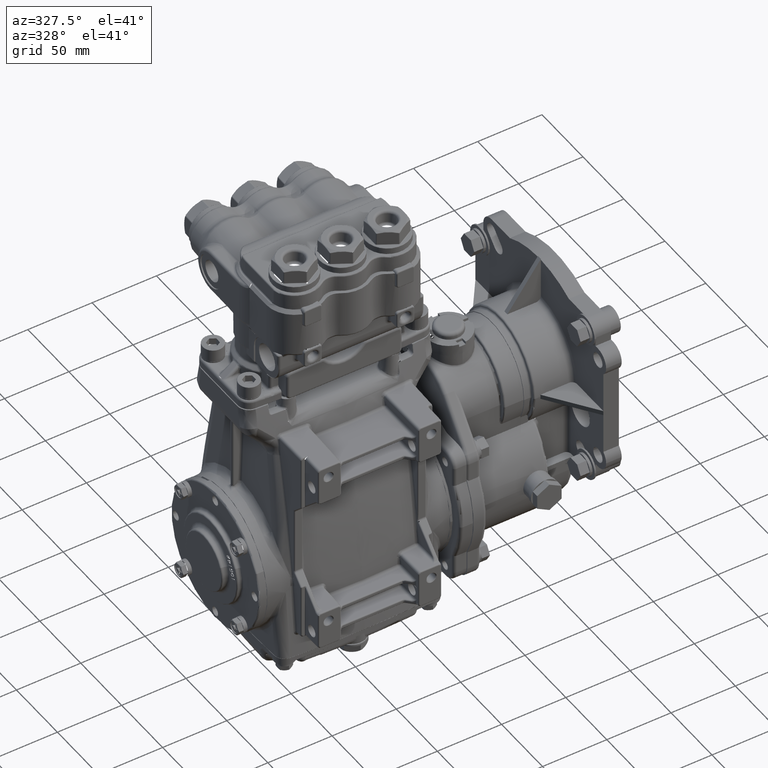
[diagram: clean part render]
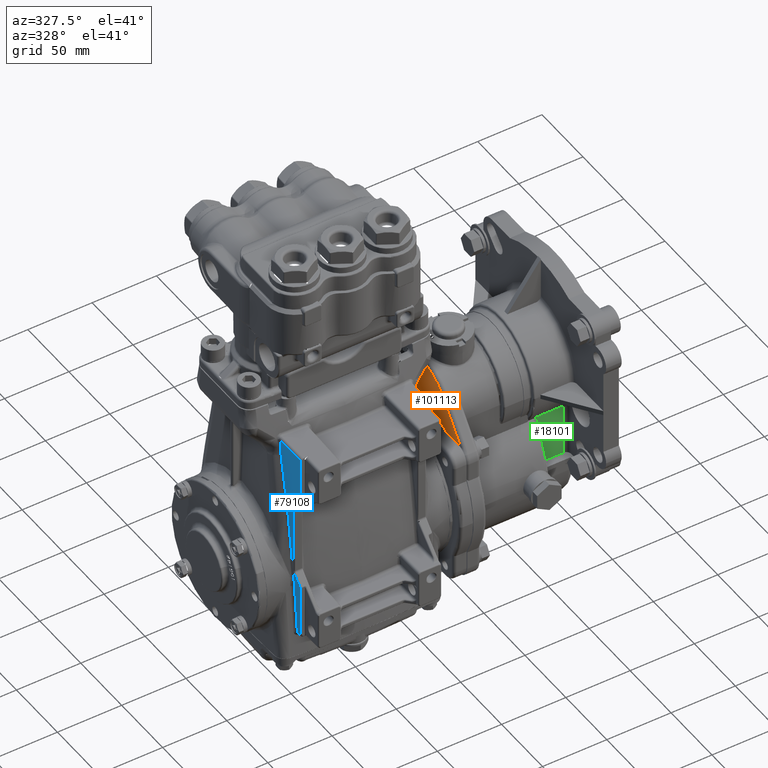
[diagram: same view with three faces highlighted in distinct colors, each labeled with its STEP entity id]
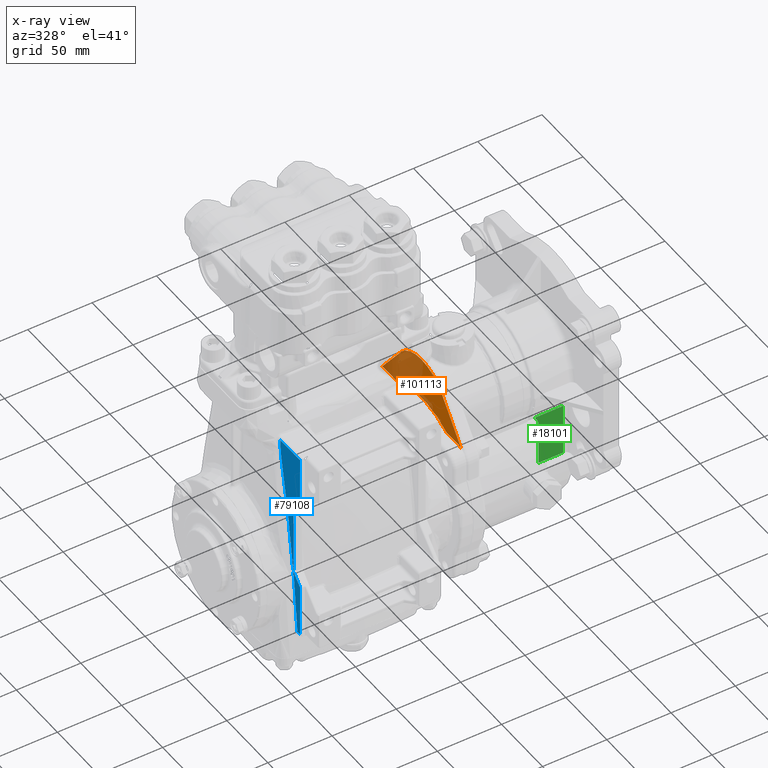
[diagram: x-ray of the same camera — body ghosted, the three highlighted faces saturated]
A machine part, auxiliary view with three faces highlighted in distinct colors.
The next image is the same camera in x-ray (body ghosted, the three faces saturated) — at least one of them is partly hidden behind the body in this view.
Their STEP definitions:

[orange] entity #101113 — the highlighted planar face has unit normal (-1, -0, 0).
#4445 = DIRECTION ( 'NONE',  ( -1.000000000000000000, -7.102626545835169598E-19, 4.324783731851683387E-18 ) ) ;
#7020 = CARTESIAN_POINT ( 'NONE',  ( 3.275275590551181892, -1.205780348985674877, 2.169999999999995044 ) ) ;
#7358 = DIRECTION ( 'NONE',  ( -1.000000000000000000, -7.102626545835169598E-19, 4.324783731851683387E-18 ) ) ;
#8636 = ORIENTED_EDGE ( 'NONE', *, *, #88073, .T. ) ;
#9980 = VECTOR ( 'NONE', #72753, 39.37007874015748143 ) ;
#12634 = DIRECTION ( 'NONE',  ( -7.102626545835171524E-19, 1.000000000000000000, 2.775557561562890735E-17 ) ) ;
#15042 = VERTEX_POINT ( 'NONE', #29482 ) ;
#15663 = AXIS2_PLACEMENT_3D ( 'NONE', #59815, #44157, #54640 ) ;
#16549 = VECTOR ( 'NONE', #33072, 39.37007874015748143 ) ;
#17288 = CARTESIAN_POINT ( 'NONE',  ( 3.275275590551181892, 1.769999999999995133, 2.169999999999996376 ) ) ;
#19481 = AXIS2_PLACEMENT_3D ( 'NONE', #110079, #7358, #93325 ) ;
#22994 = CARTESIAN_POINT ( 'NONE',  ( 3.275275590551181892, -5.562166079933258553E-15, -4.917326388595674188E-15 ) ) ;
#23049 = ORIENTED_EDGE ( 'NONE', *, *, #32385, .F. ) ;
#24298 = ORIENTED_EDGE ( 'NONE', *, *, #39942, .F. ) ;
#25988 = VERTEX_POINT ( 'NONE', #7020 ) ;
#26001 = EDGE_CURVE ( 'NONE', #87105, #91603, #72862, .T. ) ;
#26794 = EDGE_CURVE ( 'NONE', #56380, #68424, #106567, .T. ) ;
#29482 = CARTESIAN_POINT ( 'NONE',  ( 3.275275590551181892, -1.001439707653811961, 3.292036818552271260 ) ) ;
#31280 = AXIS2_PLACEMENT_3D ( 'NONE', #67691, #97387, #12634 ) ;
#32385 = EDGE_CURVE ( 'NONE', #68424, #25988, #75233, .T. ) ;
#33072 = DIRECTION ( 'NONE',  ( -7.102626545835213894E-19, 1.000000000000000000, -9.406077165005021209E-16 ) ) ;
#35858 = EDGE_LOOP ( 'NONE', ( #121792, #95972, #8636, #93737, #73920, #24298, #47731, #23049 ) ) ;
#38998 = CARTESIAN_POINT ( 'NONE',  ( 3.275275590551181892, 1.205780348985664441, 2.169999999999995044 ) ) ;
#39850 = FACE_OUTER_BOUND ( 'NONE', #35858, .T. ) ;
#39942 = EDGE_CURVE ( 'NONE', #59436, #87105, #104516, .T. ) ;
#44157 = DIRECTION ( 'NONE',  ( -1.000000000000000000, -7.102626545835169598E-19, 4.324783731851683387E-18 ) ) ;
#44734 = CARTESIAN_POINT ( 'NONE',  ( 3.275275590551181892, 1.769999999999995133, 1.769999999999996243 ) ) ;
#47731 = ORIENTED_EDGE ( 'NONE', *, *, #80869, .F. ) ;
#49815 = CARTESIAN_POINT ( 'NONE',  ( 3.275275590551181892, -1.205780348985674877, 2.169999999999995044 ) ) ;
#54640 = DIRECTION ( 'NONE',  ( 0.000000000000000000, -1.000000000000000000, 0.000000000000000000 ) ) ;
#56380 = VERTEX_POINT ( 'NONE', #121809 ) ;
#59436 = VERTEX_POINT ( 'NONE', #38998 ) ;
#59598 = PLANE ( 'NONE',  #31280 ) ;
#59815 = CARTESIAN_POINT ( 'NONE',  ( 3.275275590551181892, -1.770000000000006457, 1.769999999999996243 ) ) ;
#62192 = CARTESIAN_POINT ( 'NONE',  ( 3.275275590551181892, 1.891196312143270220, 2.151197394958133113 ) ) ;
#67691 = CARTESIAN_POINT ( 'NONE',  ( 3.275275590551181892, -5.631860330304102635E-15, 2.510999999999995680 ) ) ;
#68424 = VERTEX_POINT ( 'NONE', #111199 ) ;
#71560 = VECTOR ( 'NONE', #112724, 39.37007874015748143 ) ;
#72753 = DIRECTION ( 'NONE',  ( 2.973440056707934881E-18, 0.6149896209073036912, 0.7885352028770122867 ) ) ;
#72812 = CIRCLE ( 'NONE', #19481, 1.270000000000000462 ) ;
#72862 = CIRCLE ( 'NONE', #104527, 0.4000000000000000777 ) ;
#72889 = CARTESIAN_POINT ( 'NONE',  ( 3.275275590551181892, 1.769999999999995133, 2.169999999999996376 ) ) ;
#73920 = ORIENTED_EDGE ( 'NONE', *, *, #26001, .F. ) ;
#74962 = CARTESIAN_POINT ( 'NONE',  ( 3.275275590551181892, 1.001439707653800193, 3.292036818552271704 ) ) ;
#75233 = LINE ( 'NONE', #49815, #16549 ) ;
#76411 = EDGE_CURVE ( 'NONE', #86216, #91603, #121968, .T. ) ;
#80869 = EDGE_CURVE ( 'NONE', #25988, #59436, #113585, .T. ) ;
#83243 = LINE ( 'NONE', #111740, #9980 ) ;
#86216 = VERTEX_POINT ( 'NONE', #109738 ) ;
#87105 = VERTEX_POINT ( 'NONE', #72889 ) ;
#88073 = EDGE_CURVE ( 'NONE', #15042, #86216, #72812, .T. ) ;
#89334 = DIRECTION ( 'NONE',  ( 0.000000000000000000, -1.000000000000000000, 0.000000000000000000 ) ) ;
#90295 = EDGE_CURVE ( 'NONE', #56380, #15042, #83243, .T. ) ;
#91603 = VERTEX_POINT ( 'NONE', #62192 ) ;
#93325 = DIRECTION ( 'NONE',  ( 0.000000000000000000, 1.000000000000000000, 0.000000000000000000 ) ) ;
#93737 = ORIENTED_EDGE ( 'NONE', *, *, #76411, .T. ) ;
#95972 = ORIENTED_EDGE ( 'NONE', *, *, #90295, .T. ) ;
#97387 = DIRECTION ( 'NONE',  ( -1.000000000000000000, -7.102626545835172487E-19, 4.324783731851683387E-18 ) ) ;
#101113 = ADVANCED_FACE ( 'NONE', ( #39850 ), #59598, .T. ) ;
#104516 = LINE ( 'NONE', #17288, #114183 ) ;
#104527 = AXIS2_PLACEMENT_3D ( 'NONE', #44734, #120211, #89334 ) ;
#106567 = CIRCLE ( 'NONE', #15663, 0.3999999999999998557 ) ;
#109738 = CARTESIAN_POINT ( 'NONE',  ( 3.275275590551181892, 1.001439707653800859, 3.292036818552271260 ) ) ;
#110079 = CARTESIAN_POINT ( 'NONE',  ( 3.275275590551181892, -5.631860330304102635E-15, 2.510999999999995680 ) ) ;
#111199 = CARTESIAN_POINT ( 'NONE',  ( 3.275275590551181892, -1.770000000000006457, 2.169999999999995488 ) ) ;
#111740 = CARTESIAN_POINT ( 'NONE',  ( 3.275275590551181892, -1.001439707653811295, 3.292036818552271704 ) ) ;
#112724 = DIRECTION ( 'NONE',  ( -3.847048378081799621E-18, 0.6149896209073036912, -0.7885352028770122867 ) ) ;
#113174 = DIRECTION ( 'NONE',  ( -7.102626545835088709E-19, 1.000000000000000000, 1.964482159847890588E-15 ) ) ;
#113585 = CIRCLE ( 'NONE', #115584, 2.482500000000000817 ) ;
#114183 = VECTOR ( 'NONE', #113174, 39.37007874015748143 ) ;
#115584 = AXIS2_PLACEMENT_3D ( 'NONE', #22994, #4445, #117634 ) ;
#117634 = DIRECTION ( 'NONE',  ( 0.000000000000000000, -1.000000000000000000, -2.775557561562887345E-17 ) ) ;
#120211 = DIRECTION ( 'NONE',  ( -1.000000000000000000, -7.102626545835169598E-19, 4.324783731851683387E-18 ) ) ;
#121792 = ORIENTED_EDGE ( 'NONE', *, *, #26794, .F. ) ;
#121809 = CARTESIAN_POINT ( 'NONE',  ( 3.275275590551181892, -1.891196312143281988, 2.151197394958133113 ) ) ;
#121968 = LINE ( 'NONE', #74962, #71560 ) ;

[blue] entity #79108 — the highlighted planar face has unit normal (-0.9998, -0.0175, 0).
#454 = VERTEX_POINT ( 'NONE', #71701 ) ;
#4289 = CARTESIAN_POINT ( 'NONE',  ( -2.024130045813914869, -2.218298960469661907, 0.1030058499135407535 ) ) ;
#4439 = LINE ( 'NONE', #59477, #66295 ) ;
#4765 = CARTESIAN_POINT ( 'NONE',  ( -2.035506776601280876, -1.566526490178004494, 4.342248327325532564 ) ) ;
#4805 = CARTESIAN_POINT ( 'NONE',  ( -2.035885979979914051, -1.544801943165829528, 4.634323169337679182 ) ) ;
#6179 = VECTOR ( 'NONE', #91725, 39.37007874015748143 ) ;
#6248 = CARTESIAN_POINT ( 'NONE',  ( -2.024130045813914869, -2.218298960469661907, 0.1030058499135407535 ) ) ;
#7146 = ORIENTED_EDGE ( 'NONE', *, *, #46974, .F. ) ;
#7166 = CARTESIAN_POINT ( 'NONE',  ( -2.019544546098117177, -2.481002063245562272, 4.617981735455881420 ) ) ;
#10600 = CARTESIAN_POINT ( 'NONE',  ( -1.999059999529802845, -3.654560950167802691, 4.179930869898172752 ) ) ;
#11271 = CARTESIAN_POINT ( 'NONE',  ( -2.024438369285970651, -2.200635120585733073, 0.5417114951169865744 ) ) ;
#12406 = EDGE_CURVE ( 'NONE', #17427, #85623, #70113, .T. ) ;
#12877 = FACE_OUTER_BOUND ( 'NONE', #90793, .T. ) ;
#13719 = CARTESIAN_POINT ( 'NONE',  ( -2.024830165668790816, -2.178189120846862004, 0.5641574948558583102 ) ) ;
#14057 = CARTESIAN_POINT ( 'NONE',  ( -2.035219967660943929, -1.582957763365248738, 4.175723994886459955 ) ) ;
#14944 = VECTOR ( 'NONE', #23088, 39.37007874015748143 ) ;
#16928 = CARTESIAN_POINT ( 'NONE',  ( -2.035702988770760946, -1.555285502517031793, 4.551273033996242390 ) ) ;
#17427 = VERTEX_POINT ( 'NONE', #41727 ) ;
#19720 =( BOUNDED_CURVE ( )  B_SPLINE_CURVE ( 3, ( #6248, #43988, #89788, #62516 ),
 .UNSPECIFIED., .F., .T. ) 
 B_SPLINE_CURVE_WITH_KNOTS ( ( 4, 4 ),
 ( 0.04639283067978829805, 0.1728886683575974470 ),
 .UNSPECIFIED. ) 
 CURVE ( )  GEOMETRIC_REPRESENTATION_ITEM ( )  RATIONAL_B_SPLINE_CURVE ( ( 1.000000000000000000, 0.9986670113725250042, 0.9986670113725250042, 1.000000000000000000 ) ) 
 REPRESENTATION_ITEM ( '' )  );
#20832 = CARTESIAN_POINT ( 'NONE',  ( -2.024130045813914869, -2.218298960469661907, 0.1030058499135407535 ) ) ;
#21090 = ORIENTED_EDGE ( 'NONE', *, *, #105280, .F. ) ;
#21793 = EDGE_CURVE ( 'NONE', #47583, #22811, #4439, .T. ) ;
#22811 = VERTEX_POINT ( 'NONE', #32895 ) ;
#23088 = DIRECTION ( 'NONE',  ( -4.382719174871368785E-18, -5.544652149419484913E-17, -1.000000000000000000 ) ) ;
#23365 = PLANE ( 'NONE',  #77856 ) ;
#25431 = VERTEX_POINT ( 'NONE', #20832 ) ;
#25711 = CARTESIAN_POINT ( 'NONE',  ( -2.027510179900914533, -2.024651208318652085, 1.676761298908300279 ) ) ;
#25960 = VERTEX_POINT ( 'NONE', #110345 ) ;
#26199 = CARTESIAN_POINT ( 'NONE',  ( -2.035603110302397045, -1.561007536137296370, 4.467777737778649616 ) ) ;
#26257 = EDGE_CURVE ( 'NONE', #25431, #49226, #19720, .T. ) ;
#26889 = CARTESIAN_POINT ( 'NONE',  ( -2.024809047652420535, -2.179398971194454582, 0.4384979107439024859 ) ) ;
#28010 = ORIENTED_EDGE ( 'NONE', *, *, #62450, .F. ) ;
#28874 = LINE ( 'NONE', #57921, #84683 ) ;
#32718 = CARTESIAN_POINT ( 'NONE',  ( -2.024128434642699759, -2.218391264406749386, 0.1010176613143911745 ) ) ;
#32856 = CARTESIAN_POINT ( 'NONE',  ( -2.025042204343225016, -2.166041433324302101, 0.6252280440760272784 ) ) ;
#32895 = CARTESIAN_POINT ( 'NONE',  ( -2.019544546098117621, -2.481002063245561384, 3.006371982975918566 ) ) ;
#34842 = CARTESIAN_POINT ( 'NONE',  ( -2.024809047652420535, -2.179398971194454582, 0.4384979107439024859 ) ) ;
#35949 = CARTESIAN_POINT ( 'NONE',  ( -2.024438369285970651, -2.200635120585733073, 2.726005040316087147 ) ) ;
#36072 = CARTESIAN_POINT ( 'NONE',  ( -2.024666307172124480, -2.187576567833773744, 0.3820917326334498099 ) ) ;
#36532 = ORIENTED_EDGE ( 'NONE', *, *, #74321, .F. ) ;
#37390 = EDGE_CURVE ( 'NONE', #454, #105176, #105389, .T. ) ;
#37543 = ORIENTED_EDGE ( 'NONE', *, *, #37390, .F. ) ;
#37979 =( BOUNDED_CURVE ( )  B_SPLINE_CURVE ( 3, ( #32856, #59469, #13719, #11271 ),
 .UNSPECIFIED., .F., .F. ) 
 B_SPLINE_CURVE_WITH_KNOTS ( ( 4, 4 ),
 ( 0.000000000000000000, 0.7853981633974426169 ),
 .UNSPECIFIED. ) 
 CURVE ( )  GEOMETRIC_REPRESENTATION_ITEM ( )  RATIONAL_B_SPLINE_CURVE ( ( 1.000000000000000000, 0.9492530216741918991, 0.9492530216741918991, 1.000000000000000000 ) ) 
 REPRESENTATION_ITEM ( '' )  );
#40864 = LINE ( 'NONE', #10600, #84960 ) ;
#41470 = ORIENTED_EDGE ( 'NONE', *, *, #107820, .F. ) ;
#41727 = CARTESIAN_POINT ( 'NONE',  ( -2.019544546098117621, -2.481002063245562272, 0.2613445524571549883 ) ) ;
#41930 = DIRECTION ( 'NONE',  ( -0.01745240643728354982, 0.9998476951563912696, -5.536158772406973294E-17 ) ) ;
#42464 = CARTESIAN_POINT ( 'NONE',  ( -2.032855556174041123, -1.718414806729250843, 3.523382190082024579 ) ) ;
#43822 = EDGE_CURVE ( 'NONE', #25960, #25431, #69030, .T. ) ;
#43988 = CARTESIAN_POINT ( 'NONE',  ( -2.024205908477390903, -2.213952791389914854, 0.1966205329591511619 ) ) ;
#44154 = EDGE_CURVE ( 'NONE', #121428, #25960, #73144, .T. ) ;
#44880 = CARTESIAN_POINT ( 'NONE',  ( -2.035070583935254529, -1.591515951278250185, 4.134508982286337897 ) ) ;
#45381 = CARTESIAN_POINT ( 'NONE',  ( -2.035070583935254529, -1.591515951278250185, 4.134508982286337897 ) ) ;
#46974 = EDGE_CURVE ( 'NONE', #105176, #111492, #63811, .T. ) ;
#47583 = VERTEX_POINT ( 'NONE', #7166 ) ;
#48032 = DIRECTION ( 'NONE',  ( 0.01234165475093670569, -0.7070529271412423489, -0.7070529271412498984 ) ) ;
#48345 = ORIENTED_EDGE ( 'NONE', *, *, #86319, .F. ) ;
#49226 = VERTEX_POINT ( 'NONE', #84153 ) ;
#49410 = ORIENTED_EDGE ( 'NONE', *, *, #103642, .F. ) ;
#51273 = CARTESIAN_POINT ( 'NONE',  ( -2.024125852835092942, -2.218539176065493113, 0.09903116809614825877 ) ) ;
#51749 = CARTESIAN_POINT ( 'NONE',  ( -2.035467708730060554, -1.568764687021154902, 4.300442451014714784 ) ) ;
#53001 = CARTESIAN_POINT ( 'NONE',  ( -2.007874015748031482, -3.149606299212598159, 4.685039370078739829 ) ) ;
#54705 = B_SPLINE_CURVE_WITH_KNOTS ( 'NONE', 3,
 ( #45381, #14057, #88892, #51749, #4765, #110975, #26199, #16928, #91763, #89506 ),
 .UNSPECIFIED., .F., .F.,
 ( 4, 2, 2, 2, 4 ),
 ( 0.000000000000000000, 0.003187656264406574843, 0.006375312528813149686, 0.009562968793219724095, 0.01275062505762629937 ),
 .UNSPECIFIED. ) ;
#55735 = DIRECTION ( 'NONE',  ( -4.382719174871368785E-18, -5.544652149419484913E-17, -1.000000000000000000 ) ) ;
#55841 = CARTESIAN_POINT ( 'NONE',  ( -2.024771223151071720, -2.181565935425437974, 0.4196147988685192676 ) ) ;
#56696 = VERTEX_POINT ( 'NONE', #4805 ) ;
#57611 = VERTEX_POINT ( 'NONE', #26889 ) ;
#57921 = CARTESIAN_POINT ( 'NONE',  ( -2.052310451624273835, -0.6038445928549840414, 2.138502022847753814 ) ) ;
#58239 = CARTESIAN_POINT ( 'NONE',  ( -2.019544546098117621, -2.481002063245562717, -1.350265200022809697 ) ) ;
#59469 = CARTESIAN_POINT ( 'NONE',  ( -2.025042204343225016, -2.166041433324302101, 0.5934846068242922712 ) ) ;
#59477 = CARTESIAN_POINT ( 'NONE',  ( -2.019544546098117621, -2.481002063245562272, 3.006371982975918566 ) ) ;
#59562 = ORIENTED_EDGE ( 'NONE', *, *, #12406, .F. ) ;
#61312 = DIRECTION ( 'NONE',  ( -4.382719174871368785E-18, -5.544652149419484913E-17, -1.000000000000000000 ) ) ;
#62450 = EDGE_CURVE ( 'NONE', #108291, #56696, #54705, .T. ) ;
#62516 = CARTESIAN_POINT ( 'NONE',  ( -2.024666307172124480, -2.187576567833773744, 0.3820917326334498099 ) ) ;
#62806 = CARTESIAN_POINT ( 'NONE',  ( -2.030912172984652209, -1.829751155083217284, 2.909074709401717751 ) ) ;
#63786 = CARTESIAN_POINT ( 'NONE',  ( -2.024830165668790816, -2.178189120846862004, 2.703559040577215189 ) ) ;
#63811 = LINE ( 'NONE', #110854, #120122 ) ;
#66295 = VECTOR ( 'NONE', #61312, 39.37007874015748143 ) ;
#67552 = CARTESIAN_POINT ( 'NONE',  ( -2.023241349687006529, -2.269212327481651137, -0.3855620298490856634 ) ) ;
#69030 = B_SPLINE_CURVE_WITH_KNOTS ( 'NONE', 3,
 ( #117480, #51273, #32718, #4289 ),
 .UNSPECIFIED., .F., .F.,
 ( 4, 4 ),
 ( 0.000000000000000000, 0.0001516632036106965958 ),
 .UNSPECIFIED. ) ;
#70113 = LINE ( 'NONE', #97364, #14944 ) ;
#70581 = B_SPLINE_CURVE_WITH_KNOTS ( 'NONE', 3,
 ( #109875, #98780, #25711, #62806, #42464, #44880 ),
 .UNSPECIFIED., .F., .F.,
 ( 4, 2, 4 ),
 ( 0.000000000000000000, 0.04753262879831760684, 0.09506525759663518593 ),
 .UNSPECIFIED. ) ;
#71701 = CARTESIAN_POINT ( 'NONE',  ( -2.024438369285970651, -2.200635120585733073, 2.726005040316087147 ) ) ;
#73144 = B_SPLINE_CURVE_WITH_KNOTS ( 'NONE', 3,
 ( #92960, #107173, #67552, #116406 ),
 .UNSPECIFIED., .F., .F.,
 ( 4, 4 ),
 ( 6.938893903907228378E-18, 0.03697252225670060594 ),
 .UNSPECIFIED. ) ;
#73665 = CARTESIAN_POINT ( 'NONE',  ( -2.025042204343225016, -2.166041433324302101, 2.642488491357046332 ) ) ;
#74321 = EDGE_CURVE ( 'NONE', #22811, #454, #40864, .T. ) ;
#74869 = CARTESIAN_POINT ( 'NONE',  ( -2.021813116366593110, -2.351035759607917441, -1.352533770291285187 ) ) ;
#77856 = AXIS2_PLACEMENT_3D ( 'NONE', #53001, #89546, #41930 ) ;
#78561 = DIRECTION ( 'NONE',  ( -0.01234165475093671090, 0.7070529271412422379, -0.7070529271412501204 ) ) ;
#79108 = ADVANCED_FACE ( 'NONE', ( #12877 ), #23365, .T. ) ;
#81150 = ORIENTED_EDGE ( 'NONE', *, *, #44154, .F. ) ;
#81858 = ORIENTED_EDGE ( 'NONE', *, *, #92539, .F. ) ;
#84153 = CARTESIAN_POINT ( 'NONE',  ( -2.024666307172124480, -2.187576567833773744, 0.3820917326334498099 ) ) ;
#84683 = VECTOR ( 'NONE', #48032, 39.37007874015748854 ) ;
#84960 = VECTOR ( 'NONE', #78561, 39.37007874015748143 ) ;
#85623 = VERTEX_POINT ( 'NONE', #58239 ) ;
#86319 = EDGE_CURVE ( 'NONE', #49226, #57611, #110064, .T. ) ;
#87059 = CARTESIAN_POINT ( 'NONE',  ( -2.006039856856115300, -3.254685191755188001, -1.336760510780807598 ) ) ;
#87465 = EDGE_CURVE ( 'NONE', #85623, #121428, #88280, .T. ) ;
#88280 = LINE ( 'NONE', #87059, #106346 ) ;
#88892 = CARTESIAN_POINT ( 'NONE',  ( -2.035325044590194477, -1.576937910120207897, 4.217176319505592019 ) ) ;
#88897 = DIRECTION ( 'NONE',  ( -0.01744974916068272111, 0.9996954598818874604, -0.01744974916068278356 ) ) ;
#89506 = CARTESIAN_POINT ( 'NONE',  ( -2.035885979979914051, -1.544801943165829528, 4.634323169337679182 ) ) ;
#89546 = DIRECTION ( 'NONE',  ( -0.9998476951563912696, -0.01745240643728354982, 5.349726894163127653E-18 ) ) ;
#89788 = CARTESIAN_POINT ( 'NONE',  ( -2.024384900858268832, -2.203698324757216831, 0.2897733321543989882 ) ) ;
#90793 = EDGE_LOOP ( 'NONE', ( #41470, #28010, #81858, #48345, #117100, #120005, #81150, #91084, #59562, #49410, #21090, #7146, #37543, #36532, #120141 ) ) ;
#91084 = ORIENTED_EDGE ( 'NONE', *, *, #87465, .F. ) ;
#91725 = DIRECTION ( 'NONE',  ( 0.01744974916068272111, -0.9996954598818874604, -0.01744974916068266907 ) ) ;
#91763 = CARTESIAN_POINT ( 'NONE',  ( -2.035773768476307310, -1.551230535902016205, 4.592909058274513789 ) ) ;
#92539 = EDGE_CURVE ( 'NONE', #57611, #108291, #70581, .T. ) ;
#92960 = CARTESIAN_POINT ( 'NONE',  ( -2.021813116366593110, -2.351035759607917441, -1.352533770291285187 ) ) ;
#97364 = CARTESIAN_POINT ( 'NONE',  ( -2.019544546098117621, -2.481002063245562717, -1.349589986162939681 ) ) ;
#98780 = CARTESIAN_POINT ( 'NONE',  ( -2.026051067676749362, -2.108243691656038976, 1.058551109978490778 ) ) ;
#99901 = VERTEX_POINT ( 'NONE', #101292 ) ;
#101292 = CARTESIAN_POINT ( 'NONE',  ( -2.024438369285970651, -2.200635120585733073, 0.5417114951169865744 ) ) ;
#101556 = CARTESIAN_POINT ( 'NONE',  ( -2.025042204343225016, -2.166041433324302101, 2.674231928608780784 ) ) ;
#103642 = EDGE_CURVE ( 'NONE', #99901, #17427, #28874, .T. ) ;
#105176 = VERTEX_POINT ( 'NONE', #114574 ) ;
#105280 = EDGE_CURVE ( 'NONE', #111492, #99901, #37979, .T. ) ;
#105389 =( BOUNDED_CURVE ( )  B_SPLINE_CURVE ( 3, ( #35949, #63786, #101556, #73665 ),
 .UNSPECIFIED., .F., .F. ) 
 B_SPLINE_CURVE_WITH_KNOTS ( ( 4, 4 ),
 ( 5.497787143782142394, 6.283185307179586232 ),
 .UNSPECIFIED. ) 
 CURVE ( )  GEOMETRIC_REPRESENTATION_ITEM ( )  RATIONAL_B_SPLINE_CURVE ( ( 1.000000000000000000, 0.9492530216741916771, 0.9492530216741916771, 1.000000000000000000 ) ) 
 REPRESENTATION_ITEM ( '' )  );
#106346 = VECTOR ( 'NONE', #88897, 39.37007874015748854 ) ;
#106404 = CARTESIAN_POINT ( 'NONE',  ( -2.035070583935254529, -1.591515951278250185, 4.134508982286337897 ) ) ;
#107173 = CARTESIAN_POINT ( 'NONE',  ( -2.022472638572481163, -2.313251757737954328, -0.8687623769942589558 ) ) ;
#107820 = EDGE_CURVE ( 'NONE', #56696, #47583, #109722, .T. ) ;
#108291 = VERTEX_POINT ( 'NONE', #106404 ) ;
#109722 = LINE ( 'NONE', #116713, #6179 ) ;
#109875 = CARTESIAN_POINT ( 'NONE',  ( -2.024809047652420535, -2.179398971194454582, 0.4384979107439024859 ) ) ;
#110064 = B_SPLINE_CURVE_WITH_KNOTS ( 'NONE', 3,
 ( #36072, #110346, #55841, #34842 ),
 .UNSPECIFIED., .F., .F.,
 ( 4, 4 ),
 ( 0.000000000000000000, 0.001447699820419798061 ),
 .UNSPECIFIED. ) ;
#110345 = CARTESIAN_POINT ( 'NONE',  ( -2.024122239692624614, -2.218746172858876875, 0.09705163386022504224 ) ) ;
#110346 = CARTESIAN_POINT ( 'NONE',  ( -2.024723379495279474, -2.184306896630029193, 0.4008149286879045814 ) ) ;
#110854 = CARTESIAN_POINT ( 'NONE',  ( -2.025042204343225016, -2.166041433324302101, 4.685039370078739829 ) ) ;
#110975 = CARTESIAN_POINT ( 'NONE',  ( -2.035574124630727955, -1.562668124155075944, 4.425917860110849311 ) ) ;
#111492 = VERTEX_POINT ( 'NONE', #112062 ) ;
#112062 = CARTESIAN_POINT ( 'NONE',  ( -2.025042204343225016, -2.166041433324302101, 0.6252280440760272784 ) ) ;
#114574 = CARTESIAN_POINT ( 'NONE',  ( -2.025042204343225016, -2.166041433324302101, 2.642488491357046332 ) ) ;
#116406 = CARTESIAN_POINT ( 'NONE',  ( -2.024122239692624614, -2.218746172858876875, 0.09705163386022504224 ) ) ;
#116713 = CARTESIAN_POINT ( 'NONE',  ( -2.007897987981881460, -3.148232930855112688, 4.606335177339646592 ) ) ;
#117100 = ORIENTED_EDGE ( 'NONE', *, *, #26257, .F. ) ;
#117480 = CARTESIAN_POINT ( 'NONE',  ( -2.024122239692624614, -2.218746172858876875, 0.09705163386022504224 ) ) ;
#120005 = ORIENTED_EDGE ( 'NONE', *, *, #43822, .F. ) ;
#120122 = VECTOR ( 'NONE', #55735, 39.37007874015748143 ) ;
#120141 = ORIENTED_EDGE ( 'NONE', *, *, #21793, .F. ) ;
#121428 = VERTEX_POINT ( 'NONE', #74869 ) ;

[green] entity #18101 — the highlighted planar face has unit normal (0, -1, -0).
#1221 = CARTESIAN_POINT ( 'NONE',  ( 5.884173228346457840, -1.375000000000004663, 1.539699161006940153 ) ) ;
#2099 = EDGE_CURVE ( 'NONE', #62071, #115784, #48372, .T. ) ;
#7473 = CARTESIAN_POINT ( 'NONE',  ( 6.738275590551182859, -1.375000000000004663, -0.01600000000001042949 ) ) ;
#10350 = EDGE_CURVE ( 'NONE', #48092, #95508, #49237, .T. ) ;
#11119 = CARTESIAN_POINT ( 'NONE',  ( 5.969599634477615879, -1.375000000000004219, 1.403391520978745310 ) ) ;
#12092 = CARTESIAN_POINT ( 'NONE',  ( 5.884173228346457840, -1.375000000000004663, 1.580959678293455406 ) ) ;
#13579 = CARTESIAN_POINT ( 'NONE',  ( 5.884173228346457840, -1.375000000000004663, 1.539699161006940153 ) ) ;
#18101 = ADVANCED_FACE ( 'NONE', ( #43792 ), #35724, .T. ) ;
#19658 = CARTESIAN_POINT ( 'NONE',  ( 5.984173228346457485, -1.375000000000004663, 2.510999999999995680 ) ) ;
#20149 = ORIENTED_EDGE ( 'NONE', *, *, #77067, .F. ) ;
#23328 = DIRECTION ( 'NONE',  ( -4.324783731851680306E-18, 2.775557561562890735E-17, -1.000000000000000000 ) ) ;
#28231 = VERTEX_POINT ( 'NONE', #100551 ) ;
#29471 = CARTESIAN_POINT ( 'NONE',  ( 0.5505628188770932407, -1.375000000000004663, -0.01600000000001042949 ) ) ;
#29660 = CARTESIAN_POINT ( 'NONE',  ( 5.953732117567252402, -1.375000000000004663, 1.447360492136184229 ) ) ;
#30277 = CARTESIAN_POINT ( 'NONE',  ( 5.893349725178456566, -1.375000000000004663, 1.532362315191818425 ) ) ;
#32858 = CARTESIAN_POINT ( 'NONE',  ( 5.660275590551182567, -1.375000000000004663, 1.580959678293455406 ) ) ;
#33470 = LINE ( 'NONE', #32858, #40244 ) ;
#34084 = DIRECTION ( 'NONE',  ( 1.000000000000000000, 7.102626545835169598E-19, -4.324783731851683387E-18 ) ) ;
#35724 = PLANE ( 'NONE',  #91467 ) ;
#37579 = EDGE_LOOP ( 'NONE', ( #80958, #54193, #66486, #106381, #59275, #20149 ) ) ;
#38938 = CARTESIAN_POINT ( 'NONE',  ( 5.901760331319660047, -1.375000000000004219, 1.524279022740864686 ) ) ;
#39242 = VECTOR ( 'NONE', #85323, 39.37007874015748143 ) ;
#40244 = VECTOR ( 'NONE', #34084, 39.37007874015748143 ) ;
#43792 = FACE_OUTER_BOUND ( 'NONE', #37579, .T. ) ;
#44391 = CARTESIAN_POINT ( 'NONE',  ( 0.5505628188770932407, -1.375000000000004663, 2.510999999999995680 ) ) ;
#48038 = CARTESIAN_POINT ( 'NONE',  ( 5.984173228346457485, -1.375000000000004663, -0.01600000000001042949 ) ) ;
#48092 = VERTEX_POINT ( 'NONE', #7473 ) ;
#48372 = B_SPLINE_CURVE_WITH_KNOTS ( 'NONE', 3,
 ( #1221, #30277, #38938, #77875, #76655, #114418, #29660, #11119, #53680, #109422, #107627, #80931 ),
 .UNSPECIFIED., .F., .F.,
 ( 4, 2, 2, 2, 2, 4 ),
 ( 0.000000000000000000, 0.0008884164301839921063, 0.001776832860367984213, 0.003553665720736013962, 0.005330498581104043711, 0.007107331441472073894 ),
 .UNSPECIFIED. ) ;
#49237 = LINE ( 'NONE', #29471, #121620 ) ;
#49564 = DIRECTION ( 'NONE',  ( -4.324783731851680306E-18, 2.775557561562890735E-17, -1.000000000000000000 ) ) ;
#50993 = CARTESIAN_POINT ( 'NONE',  ( 5.984173228346457485, -1.375000000000004663, 1.289207508510555433 ) ) ;
#53680 = CARTESIAN_POINT ( 'NONE',  ( 5.975131850801270517, -1.375000000000004663, 1.380999213364234590 ) ) ;
#54193 = ORIENTED_EDGE ( 'NONE', *, *, #2099, .T. ) ;
#57467 = LINE ( 'NONE', #103322, #39242 ) ;
#59275 = ORIENTED_EDGE ( 'NONE', *, *, #69866, .T. ) ;
#62071 = VERTEX_POINT ( 'NONE', #13579 ) ;
#62929 = DIRECTION ( 'NONE',  ( 4.324783731851680306E-18, -2.775557561562890735E-17, 1.000000000000000000 ) ) ;
#66486 = ORIENTED_EDGE ( 'NONE', *, *, #99171, .T. ) ;
#66589 = VECTOR ( 'NONE', #23328, 39.37007874015748143 ) ;
#68137 = LINE ( 'NONE', #96600, #83169 ) ;
#69866 = EDGE_CURVE ( 'NONE', #48092, #28231, #57467, .T. ) ;
#76655 = CARTESIAN_POINT ( 'NONE',  ( 5.924420023128429413, -1.375000000000004663, 1.497461008987405195 ) ) ;
#77067 = EDGE_CURVE ( 'NONE', #87730, #28231, #33470, .T. ) ;
#77875 = CARTESIAN_POINT ( 'NONE',  ( 5.917287647830928421, -1.375000000000004663, 1.506851390855234785 ) ) ;
#80931 = CARTESIAN_POINT ( 'NONE',  ( 5.984173228346457485, -1.375000000000004663, 1.289207508510555433 ) ) ;
#80958 = ORIENTED_EDGE ( 'NONE', *, *, #106918, .T. ) ;
#83169 = VECTOR ( 'NONE', #49564, 39.37007874015748143 ) ;
#85323 = DIRECTION ( 'NONE',  ( 4.324783731851680306E-18, -2.775557561562890735E-17, 1.000000000000000000 ) ) ;
#87730 = VERTEX_POINT ( 'NONE', #12092 ) ;
#91467 = AXIS2_PLACEMENT_3D ( 'NONE', #44391, #119256, #62929 ) ;
#95508 = VERTEX_POINT ( 'NONE', #48038 ) ;
#96600 = CARTESIAN_POINT ( 'NONE',  ( 5.884173228346457840, -1.375000000000004663, 2.510999999999995680 ) ) ;
#99171 = EDGE_CURVE ( 'NONE', #115784, #95508, #104452, .T. ) ;
#100551 = CARTESIAN_POINT ( 'NONE',  ( 6.738275590551182859, -1.375000000000004663, 1.580959678293455406 ) ) ;
#103322 = CARTESIAN_POINT ( 'NONE',  ( 6.738275590551182859, -1.375000000000004663, 1.580959678293455406 ) ) ;
#104452 = LINE ( 'NONE', #19658, #66589 ) ;
#106381 = ORIENTED_EDGE ( 'NONE', *, *, #10350, .F. ) ;
#106918 = EDGE_CURVE ( 'NONE', #87730, #62071, #68137, .T. ) ;
#107627 = CARTESIAN_POINT ( 'NONE',  ( 5.984173228346459261, -1.375000000000004663, 1.312539279020149108 ) ) ;
#109422 = CARTESIAN_POINT ( 'NONE',  ( 5.982426738413297862, -1.375000000000004663, 1.335574466317364983 ) ) ;
#113029 = DIRECTION ( 'NONE',  ( -1.000000000000000000, -7.102626545835169598E-19, 4.324783731851683387E-18 ) ) ;
#114418 = CARTESIAN_POINT ( 'NONE',  ( 5.943610231618072781, -1.375000000000005329, 1.468322868720186136 ) ) ;
#115784 = VERTEX_POINT ( 'NONE', #50993 ) ;
#119256 = DIRECTION ( 'NONE',  ( 7.102626545835172487E-19, -1.000000000000000000, -2.775557561562890735E-17 ) ) ;
#121620 = VECTOR ( 'NONE', #113029, 39.37007874015748143 ) ;